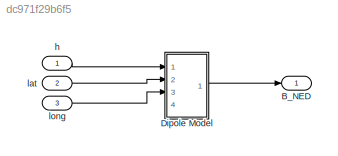
MODEL slx_dc971f29b6f5
KIND library
CONFIG AbsTol = auto
CONFIG EnableMultiTasking = off
CONFIG FixedStep = auto
CONFIG MaxStep = auto
CONFIG MinStep = auto
CONFIG RelTol = 1e-3
CONFIG SampleTimeConstraint = Unconstrained
CONFIG SolverName = VariableStepAuto
CONFIG StartTime = 0.0
CONFIG StopTime = 10.0
BLOCK [Outport] B_NED 
  VectorParamsAs1DForOutWhenUnconnected = off
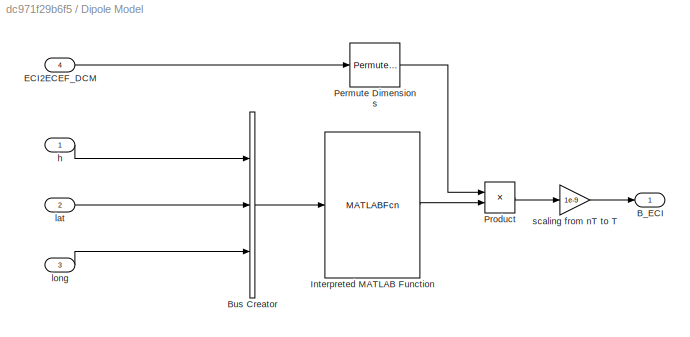
BLOCK [SubSystem] Dipole Model
  Ports = [4, 1]
  RequestExecContextInheritance = off
BLOCK [Outport] Dipole Model/B_ECI 
  VectorParamsAs1DForOutWhenUnconnected = off
BLOCK [BusCreator] Dipole Model/Bus Creator
  DisplayOption = bar
  InheritFromInputs = on
  Inputs = 3
  Ports = [3, 1]
BLOCK [Inport] Dipole Model/ECI2ECEF_DCM
  Port = 4
BLOCK [MATLABFcn] Dipole Model/Interpreted MATLAB Function
  MATLABFcn = DipoleMod(u(1),u(2),u(3),nmax)
  Ports = [1, 1]
BLOCK [PermuteDimensions] Dipole Model/Permute Dimensions
BLOCK [Product] Dipole Model/Product
  Multiplication = Matrix(*)
  Ports = [2, 1]
BLOCK [Inport] Dipole Model/h
BLOCK [Inport] Dipole Model/lat 
  Port = 2
BLOCK [Inport] Dipole Model/long
  Port = 3
BLOCK [Gain] Dipole Model/scaling from nT to T
  Gain = 1e-9
BLOCK [Inport] h
BLOCK [Inport] lat 
  Port = 2
BLOCK [Inport] long
  Port = 3
LINE Dipole Model/Bus Creator:1 -> Dipole Model/Interpreted MATLAB Function:1
LINE Dipole Model/ECI2ECEF_DCM:1 -> Dipole Model/Permute Dimensions:1
LINE Dipole Model/Interpreted MATLAB Function:1 -> Dipole Model/Product:2
LINE Dipole Model/Permute Dimensions:1 -> Dipole Model/Product:1
LINE Dipole Model/Product:1 -> Dipole Model/scaling from nT to T:1
LINE Dipole Model/h:1 -> Dipole Model/Bus Creator:1
LINE Dipole Model/lat :1 -> Dipole Model/Bus Creator:2
LINE Dipole Model/long:1 -> Dipole Model/Bus Creator:3
LINE Dipole Model/scaling from nT to T:1 -> Dipole Model/B_ECI :1
LINE Dipole Model:1 -> B_NED :1
LINE h:1 -> Dipole Model:1
LINE lat :1 -> Dipole Model:2
LINE long:1 -> Dipole Model:3
